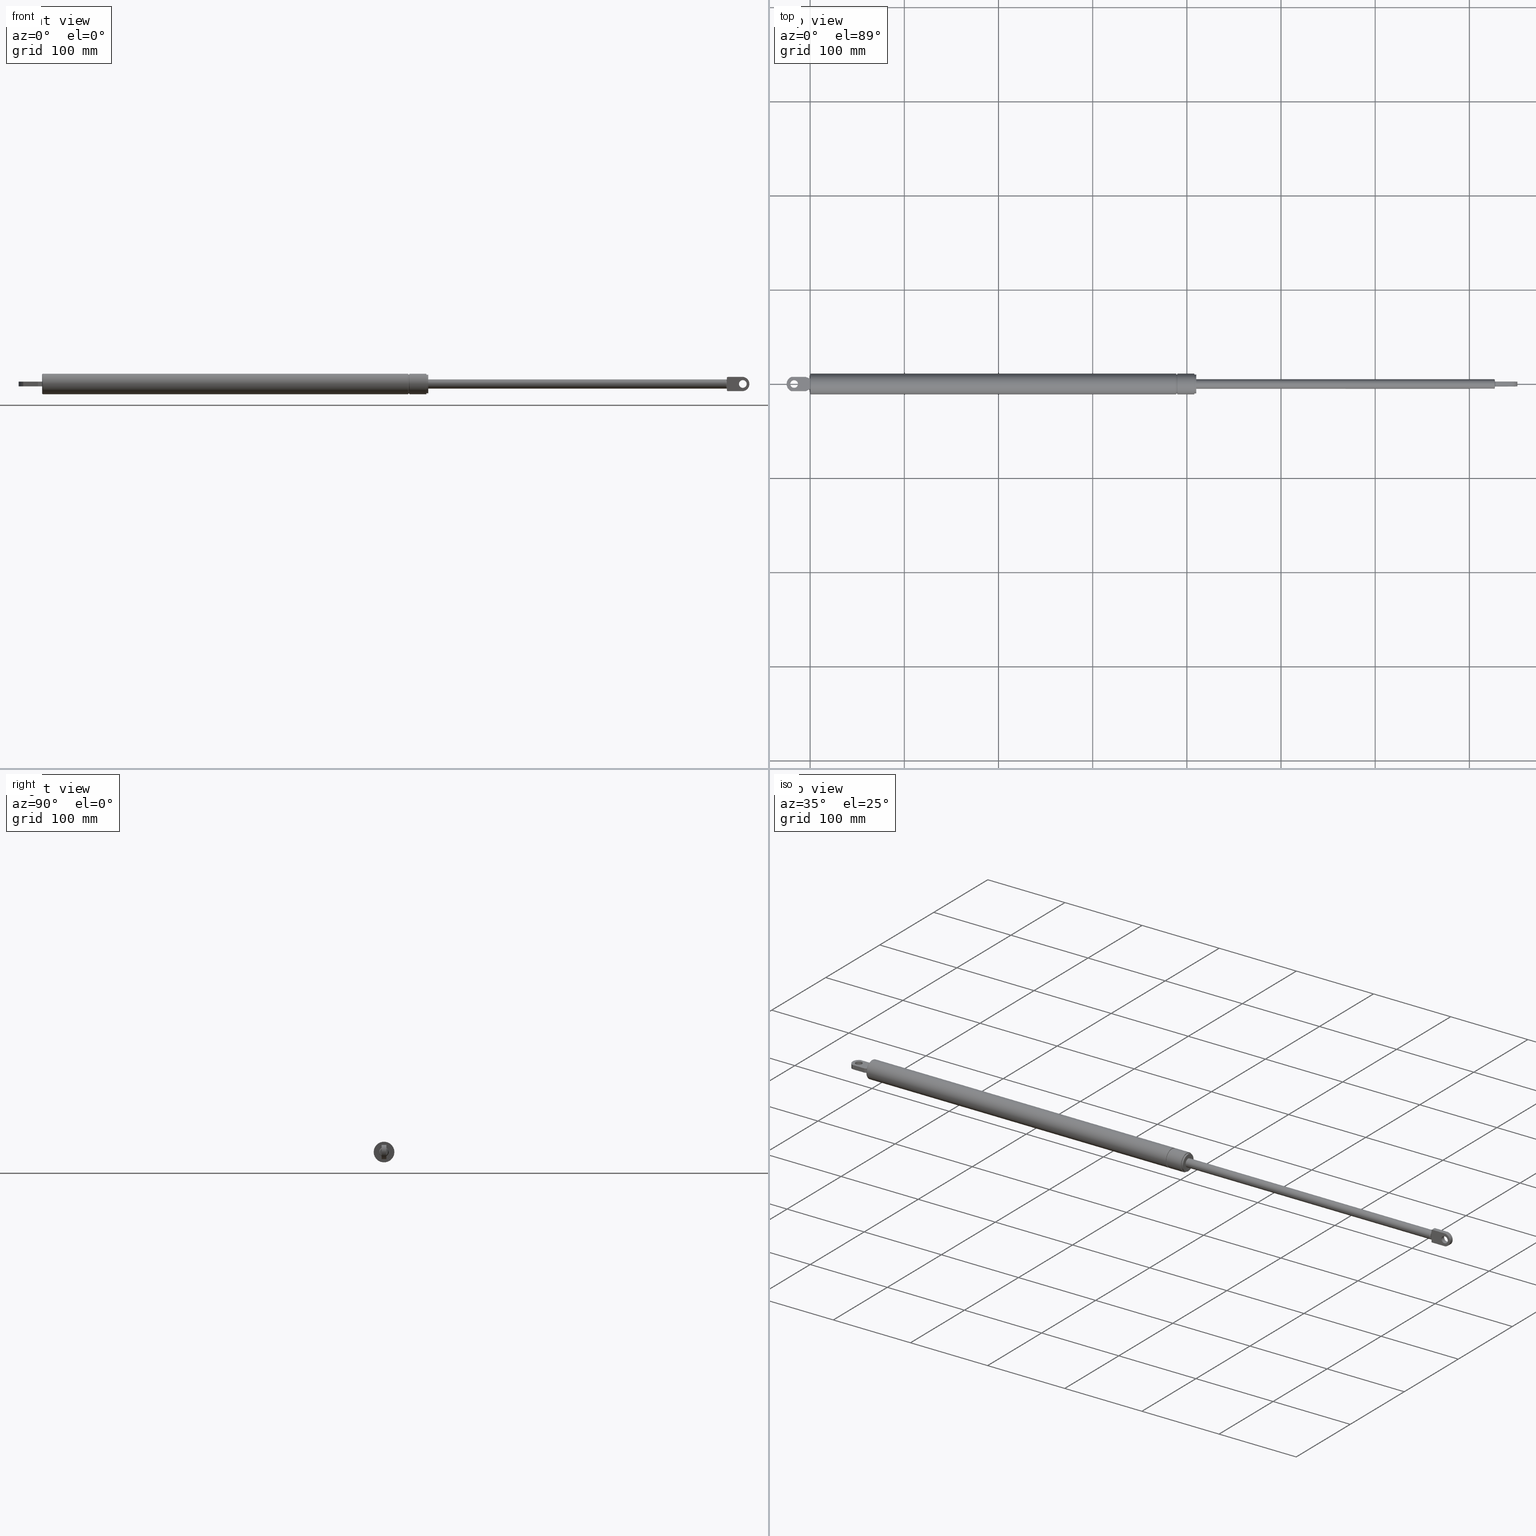
[diagram: canonical four-view strip — front | top / right | iso, engineering-drawing reading convention]
A machine part, canonical four-view strip (front | top / right | iso — engineering-drawing reading convention). The complete STEP part file that produces these views, byte-faithful:
ISO-10303-21;
HEADER;
/* Generated by software containing ST-Developer
 * from STEP Tools, Inc. (www.steptools.com) 
 */

FILE_DESCRIPTION(
/* description */ (''),
/* implementation_level */ '2;1');

FILE_NAME(
/* name */ '\\\\SYNOLOGYNAS\\web\\db2\\SBG-761\\SBG-761.stp',
/* time_stamp */ '2025-11-17T17:49:21+09:00',
/* author */ ('user'),
/* organization */ (''),
/* preprocessor_version */ 'ST-DEVELOPER v15.6',
/* originating_system */ 'Autodesk Inventor 2015',
/* authorisation */ '');

FILE_SCHEMA (('AUTOMOTIVE_DESIGN { 1 0 10303 214 3 1 1 }'));
ENDSEC;

DATA;
#10=MECHANICAL_DESIGN_GEOMETRIC_PRESENTATION_REPRESENTATION('',(#569,#568,
#570,#565,#566,#567,#539,#540,#536,#535,#538,#537,#549,#546,#551,#543,#542,
#550,#544,#545,#547,#541,#548,#552,#560,#559,#554,#558,#561,#557,#556,#553,
#562,#555,#563,#564),#1048);
#11=SHAPE_REPRESENTATION_RELATIONSHIP('SRR','None',#1057,#12);
#12=ADVANCED_BREP_SHAPE_REPRESENTATION($,(#13),#1047);
#13=MANIFOLD_SOLID_BREP('\X2\C194B9ACB4DC\X0\1',#607);
#14=PLANE('',#622);
#15=PLANE('',#623);
#16=PLANE('',#629);
#17=PLANE('',#632);
#18=PLANE('',#633);
#19=PLANE('',#636);
#20=PLANE('',#637);
#21=PLANE('',#638);
#22=PLANE('',#642);
#23=PLANE('',#644);
#24=PLANE('',#645);
#25=PLANE('',#646);
#26=PLANE('',#648);
#27=PLANE('',#649);
#28=PLANE('',#654);
#29=PLANE('',#660);
#30=PLANE('',#669);
#31=PLANE('',#672);
#32=PLANE('',#675);
#33=FACE_BOUND('',#174,.T.);
#34=FACE_BOUND('',#179,.T.);
#35=FACE_BOUND('',#183,.T.);
#36=FACE_BOUND('',#186,.T.);
#37=FACE_BOUND('',#192,.T.);
#38=FACE_BOUND('',#194,.T.);
#39=FACE_BOUND('',#198,.T.);
#40=FACE_BOUND('',#203,.T.);
#41=FACE_BOUND('',#205,.T.);
#42=FACE_BOUND('',#207,.T.);
#43=FACE_BOUND('',#209,.T.);
#44=FACE_BOUND('',#211,.T.);
#45=FACE_BOUND('',#213,.T.);
#46=FACE_BOUND('',#215,.T.);
#47=FACE_BOUND('',#217,.T.);
#48=FACE_BOUND('',#219,.T.);
#49=FACE_BOUND('',#221,.T.);
#50=FACE_BOUND('',#223,.T.);
#51=FACE_BOUND('',#225,.T.);
#52=FACE_BOUND('',#227,.T.);
#53=LINE('',#878,#89);
#54=LINE('',#880,#90);
#55=LINE('',#884,#91);
#56=LINE('',#888,#92);
#57=LINE('',#921,#93);
#58=LINE('',#924,#94);
#59=LINE('',#926,#95);
#60=LINE('',#927,#96);
#61=LINE('',#930,#97);
#62=LINE('',#934,#98);
#63=LINE('',#937,#99);
#64=LINE('',#938,#100);
#65=LINE('',#945,#101);
#66=LINE('',#946,#102);
#67=LINE('',#948,#103);
#68=LINE('',#954,#104);
#69=LINE('',#955,#105);
#70=LINE('',#957,#106);
#71=LINE('',#959,#107);
#72=LINE('',#962,#108);
#73=LINE('',#974,#109);
#74=LINE('',#976,#110);
#75=LINE('',#978,#111);
#76=LINE('',#982,#112);
#77=LINE('',#983,#113);
#78=LINE('',#986,#114);
#79=LINE('',#988,#115);
#80=LINE('',#989,#116);
#81=LINE('',#992,#117);
#82=LINE('',#993,#118);
#83=LINE('',#996,#119);
#84=LINE('',#1000,#120);
#85=LINE('',#1001,#121);
#86=LINE('',#1003,#122);
#87=LINE('',#1004,#123);
#88=LINE('',#1006,#124);
#89=VECTOR('',#686,0.999999999999943);
#90=VECTOR('',#687,0.999999999999943);
#91=VECTOR('',#690,0.999999999999943);
#92=VECTOR('',#693,0.999999999999943);
#93=VECTOR('',#706,5.);
#94=VECTOR('',#709,5.);
#95=VECTOR('',#712,2.16987298107817);
#96=VECTOR('',#713,2.16987298107802);
#97=VECTOR('',#716,16.6941859308233);
#98=VECTOR('',#719,16.6941859308233);
#99=VECTOR('',#722,2.16987298107789);
#100=VECTOR('',#723,6.2449979983982);
#101=VECTOR('',#730,5.);
#102=VECTOR('',#731,5.);
#103=VECTOR('',#734,2.16987298107774);
#104=VECTOR('',#741,16.6941859308233);
#105=VECTOR('',#742,5.);
#106=VECTOR('',#745,6.24499799839863);
#107=VECTOR('',#746,16.6941859308233);
#108=VECTOR('',#751,5.);
#109=VECTOR('',#766,11.);
#110=VECTOR('',#767,4.92442890089806);
#111=VECTOR('',#768,15.5);
#112=VECTOR('',#771,15.5);
#113=VECTOR('',#772,4.92442890089806);
#114=VECTOR('',#775,5.);
#115=VECTOR('',#776,15.5);
#116=VECTOR('',#777,5.);
#117=VECTOR('',#780,4.92442890089806);
#118=VECTOR('',#781,5.);
#119=VECTOR('',#784,11.);
#120=VECTOR('',#787,15.5);
#121=VECTOR('',#788,4.92442890089806);
#122=VECTOR('',#791,5.);
#123=VECTOR('',#792,5.);
#124=VECTOR('',#795,5.);
#125=CYLINDRICAL_SURFACE('',#612,5.00000000000001);
#126=CYLINDRICAL_SURFACE('',#619,1.);
#127=CYLINDRICAL_SURFACE('',#627,1.);
#128=CYLINDRICAL_SURFACE('',#630,4.09999999999999);
#129=CYLINDRICAL_SURFACE('',#635,7.61307660055715);
#130=CYLINDRICAL_SURFACE('',#639,4.1);
#131=CYLINDRICAL_SURFACE('',#650,8.125);
#132=CYLINDRICAL_SURFACE('',#655,11.);
#133=CYLINDRICAL_SURFACE('',#662,11.);
#134=CYLINDRICAL_SURFACE('',#667,10.1);
#135=CYLINDRICAL_SURFACE('',#673,9.9);
#136=FACE_OUTER_BOUND('',#172,.T.);
#137=FACE_OUTER_BOUND('',#173,.T.);
#138=FACE_OUTER_BOUND('',#175,.T.);
#139=FACE_OUTER_BOUND('',#176,.T.);
#140=FACE_OUTER_BOUND('',#177,.T.);
#141=FACE_OUTER_BOUND('',#178,.T.);
#142=FACE_OUTER_BOUND('',#180,.T.);
#143=FACE_OUTER_BOUND('',#181,.T.);
#144=FACE_OUTER_BOUND('',#182,.T.);
#145=FACE_OUTER_BOUND('',#184,.T.);
#146=FACE_OUTER_BOUND('',#185,.T.);
#147=FACE_OUTER_BOUND('',#187,.T.);
#148=FACE_OUTER_BOUND('',#188,.T.);
#149=FACE_OUTER_BOUND('',#189,.T.);
#150=FACE_OUTER_BOUND('',#190,.T.);
#151=FACE_OUTER_BOUND('',#191,.T.);
#152=FACE_OUTER_BOUND('',#193,.T.);
#153=FACE_OUTER_BOUND('',#195,.T.);
#154=FACE_OUTER_BOUND('',#196,.T.);
#155=FACE_OUTER_BOUND('',#197,.T.);
#156=FACE_OUTER_BOUND('',#199,.T.);
#157=FACE_OUTER_BOUND('',#200,.T.);
#158=FACE_OUTER_BOUND('',#201,.T.);
#159=FACE_OUTER_BOUND('',#202,.T.);
#160=FACE_OUTER_BOUND('',#204,.T.);
#161=FACE_OUTER_BOUND('',#206,.T.);
#162=FACE_OUTER_BOUND('',#208,.T.);
#163=FACE_OUTER_BOUND('',#210,.T.);
#164=FACE_OUTER_BOUND('',#212,.T.);
#165=FACE_OUTER_BOUND('',#214,.T.);
#166=FACE_OUTER_BOUND('',#216,.T.);
#167=FACE_OUTER_BOUND('',#218,.T.);
#168=FACE_OUTER_BOUND('',#220,.T.);
#169=FACE_OUTER_BOUND('',#222,.T.);
#170=FACE_OUTER_BOUND('',#224,.T.);
#171=FACE_OUTER_BOUND('',#226,.T.);
#172=EDGE_LOOP('',(#387,#388,#389,#390));
#173=EDGE_LOOP('',(#391,#392,#393,#394,#395,#396,#397,#398));
#174=EDGE_LOOP('',(#399));
#175=EDGE_LOOP('',(#400,#401,#402,#403));
#176=EDGE_LOOP('',(#404,#405,#406,#407));
#177=EDGE_LOOP('',(#408,#409,#410,#411));
#178=EDGE_LOOP('',(#412,#413,#414,#415,#416,#417,#418,#419,#420,#421,#422,
#423));
#179=EDGE_LOOP('',(#424));
#180=EDGE_LOOP('',(#425,#426,#427,#428));
#181=EDGE_LOOP('',(#429,#430,#431,#432));
#182=EDGE_LOOP('',(#433));
#183=EDGE_LOOP('',(#434));
#184=EDGE_LOOP('',(#435,#436,#437,#438));
#185=EDGE_LOOP('',(#439,#440,#441,#442,#443,#444,#445,#446,#447,#448,#449,
#450));
#186=EDGE_LOOP('',(#451));
#187=EDGE_LOOP('',(#452,#453,#454,#455));
#188=EDGE_LOOP('',(#456,#457,#458,#459));
#189=EDGE_LOOP('',(#460,#461));
#190=EDGE_LOOP('',(#462,#463));
#191=EDGE_LOOP('',(#464));
#192=EDGE_LOOP('',(#465));
#193=EDGE_LOOP('',(#466,#467,#468,#469,#470,#471));
#194=EDGE_LOOP('',(#472));
#195=EDGE_LOOP('',(#473,#474,#475,#476));
#196=EDGE_LOOP('',(#477,#478,#479,#480));
#197=EDGE_LOOP('',(#481,#482,#483,#484,#485,#486));
#198=EDGE_LOOP('',(#487));
#199=EDGE_LOOP('',(#488,#489,#490,#491));
#200=EDGE_LOOP('',(#492,#493,#494,#495));
#201=EDGE_LOOP('',(#496,#497,#498,#499));
#202=EDGE_LOOP('',(#500));
#203=EDGE_LOOP('',(#501));
#204=EDGE_LOOP('',(#502));
#205=EDGE_LOOP('',(#503,#504,#505,#506));
#206=EDGE_LOOP('',(#507));
#207=EDGE_LOOP('',(#508));
#208=EDGE_LOOP('',(#509));
#209=EDGE_LOOP('',(#510));
#210=EDGE_LOOP('',(#511));
#211=EDGE_LOOP('',(#512));
#212=EDGE_LOOP('',(#513));
#213=EDGE_LOOP('',(#514));
#214=EDGE_LOOP('',(#515));
#215=EDGE_LOOP('',(#516));
#216=EDGE_LOOP('',(#517));
#217=EDGE_LOOP('',(#518));
#218=EDGE_LOOP('',(#519));
#219=EDGE_LOOP('',(#520));
#220=EDGE_LOOP('',(#521));
#221=EDGE_LOOP('',(#522));
#222=EDGE_LOOP('',(#523));
#223=EDGE_LOOP('',(#524));
#224=EDGE_LOOP('',(#525));
#225=EDGE_LOOP('',(#526));
#226=EDGE_LOOP('',(#527));
#227=EDGE_LOOP('',(#528));
#228=CIRCLE('',#610,4.00000000000001);
#229=CIRCLE('',#611,5.00000000000001);
#230=CIRCLE('',#613,4.99999999999999);
#231=CIRCLE('',#614,5.00000000000001);
#232=CIRCLE('',#615,4.99999999999999);
#233=CIRCLE('',#616,5.00000000000001);
#234=CIRCLE('',#618,4.00000000000001);
#235=CIRCLE('',#620,1.);
#236=CIRCLE('',#621,1.);
#237=CIRCLE('',#624,7.61307660055715);
#238=CIRCLE('',#625,1.);
#239=CIRCLE('',#626,4.09999999999999);
#240=CIRCLE('',#628,1.);
#241=CIRCLE('',#631,4.09999999999999);
#242=CIRCLE('',#634,7.61307660055715);
#243=CIRCLE('',#640,4.1);
#244=CIRCLE('',#641,4.1);
#245=CIRCLE('',#643,8.125);
#246=CIRCLE('',#647,8.125);
#247=CIRCLE('',#652,10.);
#248=CIRCLE('',#653,11.);
#249=CIRCLE('',#656,11.);
#250=CIRCLE('',#658,11.);
#251=CIRCLE('',#659,10.8);
#252=CIRCLE('',#661,9.9);
#253=CIRCLE('',#663,11.);
#254=CIRCLE('',#665,10.1);
#255=CIRCLE('',#666,10.6);
#256=CIRCLE('',#668,10.1);
#257=CIRCLE('',#671,10.6);
#258=CIRCLE('',#674,9.9);
#259=B_SPLINE_CURVE_WITH_KNOTS('',3,(#852,#853,#854,#855,#856,#857,#858,
#859,#860,#861),.UNSPECIFIED.,.F.,.F.,(4,2,2,2,4),(0.527574942057006,0.574789015693681,
0.615444328148544,0.655268100683458,0.691990051558078),.UNSPECIFIED.);
#260=B_SPLINE_CURVE_WITH_KNOTS('',3,(#865,#866,#867,#868,#869,#870,#871,
#872,#873,#874),.UNSPECIFIED.,.F.,.F.,(4,2,2,2,4),(0.,0.0367219508746202,
0.0765457234095343,0.117201035864398,0.164415109501073),.UNSPECIFIED.);
#261=B_SPLINE_CURVE_WITH_KNOTS('',3,(#894,#895,#896,#897,#898,#899,#900,
#901,#902,#903),.UNSPECIFIED.,.F.,.F.,(4,2,2,2,4),(0.527581990375259,0.577008371258371,
0.619288389863028,0.65699344234177,0.691991559418237),.UNSPECIFIED.);
#262=B_SPLINE_CURVE_WITH_KNOTS('',3,(#906,#907,#908,#909,#910,#911,#912,
#913,#914,#915),.UNSPECIFIED.,.F.,.F.,(4,2,2,2,4),(0.,0.0349981170764672,
0.0727031695552091,0.114983188159866,0.164409569042978),.UNSPECIFIED.);
#263=VERTEX_POINT('',#850);
#264=VERTEX_POINT('',#851);
#265=VERTEX_POINT('',#862);
#266=VERTEX_POINT('',#864);
#267=VERTEX_POINT('',#877);
#268=VERTEX_POINT('',#879);
#269=VERTEX_POINT('',#881);
#270=VERTEX_POINT('',#883);
#271=VERTEX_POINT('',#885);
#272=VERTEX_POINT('',#887);
#273=VERTEX_POINT('',#890);
#274=VERTEX_POINT('',#893);
#275=VERTEX_POINT('',#904);
#276=VERTEX_POINT('',#917);
#277=VERTEX_POINT('',#918);
#278=VERTEX_POINT('',#920);
#279=VERTEX_POINT('',#922);
#280=VERTEX_POINT('',#929);
#281=VERTEX_POINT('',#931);
#282=VERTEX_POINT('',#933);
#283=VERTEX_POINT('',#935);
#284=VERTEX_POINT('',#939);
#285=VERTEX_POINT('',#942);
#286=VERTEX_POINT('',#943);
#287=VERTEX_POINT('',#950);
#288=VERTEX_POINT('',#953);
#289=VERTEX_POINT('',#958);
#290=VERTEX_POINT('',#967);
#291=VERTEX_POINT('',#969);
#292=VERTEX_POINT('',#972);
#293=VERTEX_POINT('',#973);
#294=VERTEX_POINT('',#975);
#295=VERTEX_POINT('',#977);
#296=VERTEX_POINT('',#979);
#297=VERTEX_POINT('',#981);
#298=VERTEX_POINT('',#985);
#299=VERTEX_POINT('',#987);
#300=VERTEX_POINT('',#991);
#301=VERTEX_POINT('',#995);
#302=VERTEX_POINT('',#997);
#303=VERTEX_POINT('',#999);
#304=VERTEX_POINT('',#1009);
#305=VERTEX_POINT('',#1011);
#306=VERTEX_POINT('',#1015);
#307=VERTEX_POINT('',#1018);
#308=VERTEX_POINT('',#1020);
#309=VERTEX_POINT('',#1023);
#310=VERTEX_POINT('',#1026);
#311=VERTEX_POINT('',#1029);
#312=VERTEX_POINT('',#1031);
#313=VERTEX_POINT('',#1034);
#314=VERTEX_POINT('',#1038);
#315=VERTEX_POINT('',#1042);
#316=EDGE_CURVE('',#263,#264,#259,.F.);
#317=EDGE_CURVE('',#264,#265,#228,.T.);
#318=EDGE_CURVE('',#266,#265,#260,.T.);
#319=EDGE_CURVE('',#266,#263,#229,.T.);
#320=EDGE_CURVE('',#263,#267,#53,.T.);
#321=EDGE_CURVE('',#268,#266,#54,.T.);
#322=EDGE_CURVE('',#269,#268,#230,.T.);
#323=EDGE_CURVE('',#270,#269,#55,.T.);
#324=EDGE_CURVE('',#271,#270,#231,.T.);
#325=EDGE_CURVE('',#272,#271,#56,.T.);
#326=EDGE_CURVE('',#267,#272,#232,.T.);
#327=EDGE_CURVE('',#273,#273,#233,.T.);
#328=EDGE_CURVE('',#270,#274,#261,.F.);
#329=EDGE_CURVE('',#274,#275,#234,.T.);
#330=EDGE_CURVE('',#271,#275,#262,.T.);
#331=EDGE_CURVE('',#276,#277,#235,.T.);
#332=EDGE_CURVE('',#277,#278,#57,.T.);
#333=EDGE_CURVE('',#278,#279,#236,.T.);
#334=EDGE_CURVE('',#279,#276,#58,.T.);
#335=EDGE_CURVE('',#269,#279,#59,.T.);
#336=EDGE_CURVE('',#276,#268,#60,.T.);
#337=EDGE_CURVE('',#278,#280,#61,.T.);
#338=EDGE_CURVE('',#280,#281,#237,.T.);
#339=EDGE_CURVE('',#281,#282,#62,.T.);
#340=EDGE_CURVE('',#283,#282,#238,.T.);
#341=EDGE_CURVE('',#283,#272,#63,.T.);
#342=EDGE_CURVE('',#274,#275,#64,.T.);
#343=EDGE_CURVE('',#284,#284,#239,.T.);
#344=EDGE_CURVE('',#285,#286,#240,.T.);
#345=EDGE_CURVE('',#286,#283,#65,.T.);
#346=EDGE_CURVE('',#282,#285,#66,.T.);
#347=EDGE_CURVE('',#267,#286,#67,.T.);
#348=EDGE_CURVE('',#287,#287,#241,.T.);
#349=EDGE_CURVE('',#288,#277,#68,.T.);
#350=EDGE_CURVE('',#280,#288,#69,.T.);
#351=EDGE_CURVE('',#264,#265,#70,.T.);
#352=EDGE_CURVE('',#285,#289,#71,.T.);
#353=EDGE_CURVE('',#289,#288,#242,.T.);
#354=EDGE_CURVE('',#281,#289,#72,.T.);
#355=EDGE_CURVE('',#290,#290,#243,.T.);
#356=EDGE_CURVE('',#291,#291,#244,.T.);
#357=EDGE_CURVE('',#292,#293,#73,.T.);
#358=EDGE_CURVE('',#292,#294,#74,.T.);
#359=EDGE_CURVE('',#294,#295,#75,.T.);
#360=EDGE_CURVE('',#295,#296,#245,.T.);
#361=EDGE_CURVE('',#296,#297,#76,.T.);
#362=EDGE_CURVE('',#297,#293,#77,.T.);
#363=EDGE_CURVE('',#296,#298,#78,.T.);
#364=EDGE_CURVE('',#299,#298,#79,.T.);
#365=EDGE_CURVE('',#297,#299,#80,.T.);
#366=EDGE_CURVE('',#300,#299,#81,.T.);
#367=EDGE_CURVE('',#293,#300,#82,.T.);
#368=EDGE_CURVE('',#300,#301,#83,.T.);
#369=EDGE_CURVE('',#298,#302,#246,.T.);
#370=EDGE_CURVE('',#302,#303,#84,.T.);
#371=EDGE_CURVE('',#303,#301,#85,.T.);
#372=EDGE_CURVE('',#301,#292,#86,.T.);
#373=EDGE_CURVE('',#294,#303,#87,.T.);
#374=EDGE_CURVE('',#295,#302,#88,.T.);
#375=EDGE_CURVE('',#304,#304,#247,.T.);
#376=EDGE_CURVE('',#305,#305,#248,.T.);
#377=EDGE_CURVE('',#306,#306,#249,.T.);
#378=EDGE_CURVE('',#307,#307,#250,.T.);
#379=EDGE_CURVE('',#308,#308,#251,.T.);
#380=EDGE_CURVE('',#309,#309,#252,.T.);
#381=EDGE_CURVE('',#310,#310,#253,.T.);
#382=EDGE_CURVE('',#311,#311,#254,.T.);
#383=EDGE_CURVE('',#312,#312,#255,.T.);
#384=EDGE_CURVE('',#313,#313,#256,.T.);
#385=EDGE_CURVE('',#314,#314,#257,.T.);
#386=EDGE_CURVE('',#315,#315,#258,.T.);
#387=ORIENTED_EDGE('',*,*,#316,.T.);
#388=ORIENTED_EDGE('',*,*,#317,.T.);
#389=ORIENTED_EDGE('',*,*,#318,.F.);
#390=ORIENTED_EDGE('',*,*,#319,.T.);
#391=ORIENTED_EDGE('',*,*,#320,.F.);
#392=ORIENTED_EDGE('',*,*,#319,.F.);
#393=ORIENTED_EDGE('',*,*,#321,.F.);
#394=ORIENTED_EDGE('',*,*,#322,.F.);
#395=ORIENTED_EDGE('',*,*,#323,.F.);
#396=ORIENTED_EDGE('',*,*,#324,.F.);
#397=ORIENTED_EDGE('',*,*,#325,.F.);
#398=ORIENTED_EDGE('',*,*,#326,.F.);
#399=ORIENTED_EDGE('',*,*,#327,.F.);
#400=ORIENTED_EDGE('',*,*,#328,.T.);
#401=ORIENTED_EDGE('',*,*,#329,.T.);
#402=ORIENTED_EDGE('',*,*,#330,.F.);
#403=ORIENTED_EDGE('',*,*,#324,.T.);
#404=ORIENTED_EDGE('',*,*,#331,.T.);
#405=ORIENTED_EDGE('',*,*,#332,.T.);
#406=ORIENTED_EDGE('',*,*,#333,.T.);
#407=ORIENTED_EDGE('',*,*,#334,.T.);
#408=ORIENTED_EDGE('',*,*,#334,.F.);
#409=ORIENTED_EDGE('',*,*,#335,.F.);
#410=ORIENTED_EDGE('',*,*,#322,.T.);
#411=ORIENTED_EDGE('',*,*,#336,.F.);
#412=ORIENTED_EDGE('',*,*,#333,.F.);
#413=ORIENTED_EDGE('',*,*,#337,.T.);
#414=ORIENTED_EDGE('',*,*,#338,.T.);
#415=ORIENTED_EDGE('',*,*,#339,.T.);
#416=ORIENTED_EDGE('',*,*,#340,.F.);
#417=ORIENTED_EDGE('',*,*,#341,.T.);
#418=ORIENTED_EDGE('',*,*,#325,.T.);
#419=ORIENTED_EDGE('',*,*,#330,.T.);
#420=ORIENTED_EDGE('',*,*,#342,.F.);
#421=ORIENTED_EDGE('',*,*,#328,.F.);
#422=ORIENTED_EDGE('',*,*,#323,.T.);
#423=ORIENTED_EDGE('',*,*,#335,.T.);
#424=ORIENTED_EDGE('',*,*,#343,.T.);
#425=ORIENTED_EDGE('',*,*,#344,.T.);
#426=ORIENTED_EDGE('',*,*,#345,.T.);
#427=ORIENTED_EDGE('',*,*,#340,.T.);
#428=ORIENTED_EDGE('',*,*,#346,.T.);
#429=ORIENTED_EDGE('',*,*,#345,.F.);
#430=ORIENTED_EDGE('',*,*,#347,.F.);
#431=ORIENTED_EDGE('',*,*,#326,.T.);
#432=ORIENTED_EDGE('',*,*,#341,.F.);
#433=ORIENTED_EDGE('',*,*,#343,.F.);
#434=ORIENTED_EDGE('',*,*,#348,.F.);
#435=ORIENTED_EDGE('',*,*,#332,.F.);
#436=ORIENTED_EDGE('',*,*,#349,.F.);
#437=ORIENTED_EDGE('',*,*,#350,.F.);
#438=ORIENTED_EDGE('',*,*,#337,.F.);
#439=ORIENTED_EDGE('',*,*,#331,.F.);
#440=ORIENTED_EDGE('',*,*,#336,.T.);
#441=ORIENTED_EDGE('',*,*,#321,.T.);
#442=ORIENTED_EDGE('',*,*,#318,.T.);
#443=ORIENTED_EDGE('',*,*,#351,.F.);
#444=ORIENTED_EDGE('',*,*,#316,.F.);
#445=ORIENTED_EDGE('',*,*,#320,.T.);
#446=ORIENTED_EDGE('',*,*,#347,.T.);
#447=ORIENTED_EDGE('',*,*,#344,.F.);
#448=ORIENTED_EDGE('',*,*,#352,.T.);
#449=ORIENTED_EDGE('',*,*,#353,.T.);
#450=ORIENTED_EDGE('',*,*,#349,.T.);
#451=ORIENTED_EDGE('',*,*,#348,.T.);
#452=ORIENTED_EDGE('',*,*,#353,.F.);
#453=ORIENTED_EDGE('',*,*,#354,.F.);
#454=ORIENTED_EDGE('',*,*,#338,.F.);
#455=ORIENTED_EDGE('',*,*,#350,.T.);
#456=ORIENTED_EDGE('',*,*,#346,.F.);
#457=ORIENTED_EDGE('',*,*,#339,.F.);
#458=ORIENTED_EDGE('',*,*,#354,.T.);
#459=ORIENTED_EDGE('',*,*,#352,.F.);
#460=ORIENTED_EDGE('',*,*,#317,.F.);
#461=ORIENTED_EDGE('',*,*,#351,.T.);
#462=ORIENTED_EDGE('',*,*,#329,.F.);
#463=ORIENTED_EDGE('',*,*,#342,.T.);
#464=ORIENTED_EDGE('',*,*,#355,.F.);
#465=ORIENTED_EDGE('',*,*,#356,.F.);
#466=ORIENTED_EDGE('',*,*,#357,.F.);
#467=ORIENTED_EDGE('',*,*,#358,.T.);
#468=ORIENTED_EDGE('',*,*,#359,.T.);
#469=ORIENTED_EDGE('',*,*,#360,.T.);
#470=ORIENTED_EDGE('',*,*,#361,.T.);
#471=ORIENTED_EDGE('',*,*,#362,.T.);
#472=ORIENTED_EDGE('',*,*,#355,.T.);
#473=ORIENTED_EDGE('',*,*,#363,.T.);
#474=ORIENTED_EDGE('',*,*,#364,.F.);
#475=ORIENTED_EDGE('',*,*,#365,.F.);
#476=ORIENTED_EDGE('',*,*,#361,.F.);
#477=ORIENTED_EDGE('',*,*,#365,.T.);
#478=ORIENTED_EDGE('',*,*,#366,.F.);
#479=ORIENTED_EDGE('',*,*,#367,.F.);
#480=ORIENTED_EDGE('',*,*,#362,.F.);
#481=ORIENTED_EDGE('',*,*,#368,.F.);
#482=ORIENTED_EDGE('',*,*,#366,.T.);
#483=ORIENTED_EDGE('',*,*,#364,.T.);
#484=ORIENTED_EDGE('',*,*,#369,.T.);
#485=ORIENTED_EDGE('',*,*,#370,.T.);
#486=ORIENTED_EDGE('',*,*,#371,.T.);
#487=ORIENTED_EDGE('',*,*,#356,.T.);
#488=ORIENTED_EDGE('',*,*,#372,.F.);
#489=ORIENTED_EDGE('',*,*,#371,.F.);
#490=ORIENTED_EDGE('',*,*,#373,.F.);
#491=ORIENTED_EDGE('',*,*,#358,.F.);
#492=ORIENTED_EDGE('',*,*,#373,.T.);
#493=ORIENTED_EDGE('',*,*,#370,.F.);
#494=ORIENTED_EDGE('',*,*,#374,.F.);
#495=ORIENTED_EDGE('',*,*,#359,.F.);
#496=ORIENTED_EDGE('',*,*,#374,.T.);
#497=ORIENTED_EDGE('',*,*,#369,.F.);
#498=ORIENTED_EDGE('',*,*,#363,.F.);
#499=ORIENTED_EDGE('',*,*,#360,.F.);
#500=ORIENTED_EDGE('',*,*,#375,.T.);
#501=ORIENTED_EDGE('',*,*,#376,.T.);
#502=ORIENTED_EDGE('',*,*,#375,.F.);
#503=ORIENTED_EDGE('',*,*,#357,.T.);
#504=ORIENTED_EDGE('',*,*,#367,.T.);
#505=ORIENTED_EDGE('',*,*,#368,.T.);
#506=ORIENTED_EDGE('',*,*,#372,.T.);
#507=ORIENTED_EDGE('',*,*,#377,.F.);
#508=ORIENTED_EDGE('',*,*,#376,.F.);
#509=ORIENTED_EDGE('',*,*,#378,.T.);
#510=ORIENTED_EDGE('',*,*,#379,.T.);
#511=ORIENTED_EDGE('',*,*,#379,.F.);
#512=ORIENTED_EDGE('',*,*,#380,.F.);
#513=ORIENTED_EDGE('',*,*,#381,.T.);
#514=ORIENTED_EDGE('',*,*,#378,.F.);
#515=ORIENTED_EDGE('',*,*,#382,.T.);
#516=ORIENTED_EDGE('',*,*,#383,.T.);
#517=ORIENTED_EDGE('',*,*,#384,.F.);
#518=ORIENTED_EDGE('',*,*,#382,.F.);
#519=ORIENTED_EDGE('',*,*,#381,.F.);
#520=ORIENTED_EDGE('',*,*,#383,.F.);
#521=ORIENTED_EDGE('',*,*,#385,.T.);
#522=ORIENTED_EDGE('',*,*,#384,.T.);
#523=ORIENTED_EDGE('',*,*,#377,.T.);
#524=ORIENTED_EDGE('',*,*,#385,.F.);
#525=ORIENTED_EDGE('',*,*,#380,.T.);
#526=ORIENTED_EDGE('',*,*,#386,.F.);
#527=ORIENTED_EDGE('',*,*,#386,.T.);
#528=ORIENTED_EDGE('',*,*,#327,.T.);
#529=TOROIDAL_SURFACE('',#609,4.00000000000001,1.);
#530=TOROIDAL_SURFACE('',#617,4.00000000000001,1.);
#531=TOROIDAL_SURFACE('',#651,10.,1.);
#532=TOROIDAL_SURFACE('',#657,10.8,0.2);
#533=TOROIDAL_SURFACE('',#664,10.6,0.5);
#534=TOROIDAL_SURFACE('',#670,10.6,0.5);
#535=STYLED_ITEM('',(#1067),#571);
#536=STYLED_ITEM('',(#1068),#572);
#537=STYLED_ITEM('',(#1067),#573);
#538=STYLED_ITEM('',(#1067),#574);
#539=STYLED_ITEM('',(#1067),#575);
#540=STYLED_ITEM('',(#1067),#576);
#541=STYLED_ITEM('',(#1067),#577);
#542=STYLED_ITEM('',(#1067),#578);
#543=STYLED_ITEM('',(#1067),#579);
#544=STYLED_ITEM('',(#1067),#580);
#545=STYLED_ITEM('',(#1067),#581);
#546=STYLED_ITEM('',(#1067),#582);
#547=STYLED_ITEM('',(#1067),#583);
#548=STYLED_ITEM('',(#1067),#584);
#549=STYLED_ITEM('',(#1067),#585);
#550=STYLED_ITEM('',(#1067),#586);
#551=STYLED_ITEM('',(#1067),#587);
#552=STYLED_ITEM('',(#1067),#588);
#553=STYLED_ITEM('',(#1067),#589);
#554=STYLED_ITEM('',(#1067),#590);
#555=STYLED_ITEM('',(#1067),#591);
#556=STYLED_ITEM('',(#1067),#592);
#557=STYLED_ITEM('',(#1067),#593);
#558=STYLED_ITEM('',(#1067),#594);
#559=STYLED_ITEM('',(#1067),#595);
#560=STYLED_ITEM('',(#1067),#596);
#561=STYLED_ITEM('',(#1067),#597);
#562=STYLED_ITEM('',(#1067),#598);
#563=STYLED_ITEM('',(#1067),#599);
#564=STYLED_ITEM('',(#1067),#600);
#565=STYLED_ITEM('',(#1067),#601);
#566=STYLED_ITEM('',(#1067),#603);
#567=STYLED_ITEM('',(#1067),#604);
#568=STYLED_ITEM('',(#1067),#605);
#569=STYLED_ITEM('',(#1067),#606);
#570=STYLED_ITEM('',(#1066),#13);
#571=ADVANCED_FACE('',(#136),#529,.T.);
#572=ADVANCED_FACE('',(#137,#33),#125,.T.);
#573=ADVANCED_FACE('',(#138),#530,.T.);
#574=ADVANCED_FACE('',(#139),#126,.T.);
#575=ADVANCED_FACE('',(#140),#14,.T.);
#576=ADVANCED_FACE('',(#141,#34),#15,.T.);
#577=ADVANCED_FACE('',(#142),#127,.T.);
#578=ADVANCED_FACE('',(#143),#16,.T.);
#579=ADVANCED_FACE('',(#144,#35),#128,.F.);
#580=ADVANCED_FACE('',(#145),#17,.T.);
#581=ADVANCED_FACE('',(#146,#36),#18,.F.);
#582=ADVANCED_FACE('',(#147),#129,.T.);
#583=ADVANCED_FACE('',(#148),#19,.T.);
#584=ADVANCED_FACE('',(#149),#20,.F.);
#585=ADVANCED_FACE('',(#150),#21,.F.);
#586=ADVANCED_FACE('',(#151,#37),#130,.F.);
#587=ADVANCED_FACE('',(#152,#38),#22,.F.);
#588=ADVANCED_FACE('',(#153),#23,.T.);
#589=ADVANCED_FACE('',(#154),#24,.T.);
#590=ADVANCED_FACE('',(#155,#39),#25,.T.);
#591=ADVANCED_FACE('',(#156),#26,.T.);
#592=ADVANCED_FACE('',(#157),#27,.T.);
#593=ADVANCED_FACE('',(#158),#131,.T.);
#594=ADVANCED_FACE('',(#159,#40),#531,.T.);
#595=ADVANCED_FACE('',(#160,#41),#28,.T.);
#596=ADVANCED_FACE('',(#161,#42),#132,.T.);
#597=ADVANCED_FACE('',(#162,#43),#532,.T.);
#598=ADVANCED_FACE('',(#163,#44),#29,.T.);
#599=ADVANCED_FACE('',(#164,#45),#133,.T.);
#600=ADVANCED_FACE('',(#165,#46),#533,.F.);
#601=ADVANCED_FACE('',(#166,#47),#134,.T.);
#602=ADVANCED_FACE('',(#167,#48),#30,.T.);
#603=ADVANCED_FACE('',(#168,#49),#534,.F.);
#604=ADVANCED_FACE('',(#169,#50),#31,.T.);
#605=ADVANCED_FACE('',(#170,#51),#135,.T.);
#606=ADVANCED_FACE('',(#171,#52),#32,.T.);
#607=CLOSED_SHELL('',(#571,#572,#573,#574,#575,#576,#577,#578,#579,#580,
#581,#582,#583,#584,#585,#586,#587,#588,#589,#590,#591,#592,#593,#594,#595,
#596,#597,#598,#599,#600,#601,#602,#603,#604,#605,#606));
#608=AXIS2_PLACEMENT_3D('placement',#848,#676,#677);
#609=AXIS2_PLACEMENT_3D('',#849,#678,#679);
#610=AXIS2_PLACEMENT_3D('',#863,#680,#681);
#611=AXIS2_PLACEMENT_3D('',#875,#682,#683);
#612=AXIS2_PLACEMENT_3D('',#876,#684,#685);
#613=AXIS2_PLACEMENT_3D('',#882,#688,#689);
#614=AXIS2_PLACEMENT_3D('',#886,#691,#692);
#615=AXIS2_PLACEMENT_3D('',#889,#694,#695);
#616=AXIS2_PLACEMENT_3D('',#891,#696,#697);
#617=AXIS2_PLACEMENT_3D('',#892,#698,#699);
#618=AXIS2_PLACEMENT_3D('',#905,#700,#701);
#619=AXIS2_PLACEMENT_3D('',#916,#702,#703);
#620=AXIS2_PLACEMENT_3D('',#919,#704,#705);
#621=AXIS2_PLACEMENT_3D('',#923,#707,#708);
#622=AXIS2_PLACEMENT_3D('',#925,#710,#711);
#623=AXIS2_PLACEMENT_3D('',#928,#714,#715);
#624=AXIS2_PLACEMENT_3D('',#932,#717,#718);
#625=AXIS2_PLACEMENT_3D('',#936,#720,#721);
#626=AXIS2_PLACEMENT_3D('',#940,#724,#725);
#627=AXIS2_PLACEMENT_3D('',#941,#726,#727);
#628=AXIS2_PLACEMENT_3D('',#944,#728,#729);
#629=AXIS2_PLACEMENT_3D('',#947,#732,#733);
#630=AXIS2_PLACEMENT_3D('',#949,#735,#736);
#631=AXIS2_PLACEMENT_3D('',#951,#737,#738);
#632=AXIS2_PLACEMENT_3D('',#952,#739,#740);
#633=AXIS2_PLACEMENT_3D('',#956,#743,#744);
#634=AXIS2_PLACEMENT_3D('',#960,#747,#748);
#635=AXIS2_PLACEMENT_3D('',#961,#749,#750);
#636=AXIS2_PLACEMENT_3D('',#963,#752,#753);
#637=AXIS2_PLACEMENT_3D('',#964,#754,#755);
#638=AXIS2_PLACEMENT_3D('',#965,#756,#757);
#639=AXIS2_PLACEMENT_3D('',#966,#758,#759);
#640=AXIS2_PLACEMENT_3D('',#968,#760,#761);
#641=AXIS2_PLACEMENT_3D('',#970,#762,#763);
#642=AXIS2_PLACEMENT_3D('',#971,#764,#765);
#643=AXIS2_PLACEMENT_3D('',#980,#769,#770);
#644=AXIS2_PLACEMENT_3D('',#984,#773,#774);
#645=AXIS2_PLACEMENT_3D('',#990,#778,#779);
#646=AXIS2_PLACEMENT_3D('',#994,#782,#783);
#647=AXIS2_PLACEMENT_3D('',#998,#785,#786);
#648=AXIS2_PLACEMENT_3D('',#1002,#789,#790);
#649=AXIS2_PLACEMENT_3D('',#1005,#793,#794);
#650=AXIS2_PLACEMENT_3D('',#1007,#796,#797);
#651=AXIS2_PLACEMENT_3D('',#1008,#798,#799);
#652=AXIS2_PLACEMENT_3D('',#1010,#800,#801);
#653=AXIS2_PLACEMENT_3D('',#1012,#802,#803);
#654=AXIS2_PLACEMENT_3D('',#1013,#804,#805);
#655=AXIS2_PLACEMENT_3D('',#1014,#806,#807);
#656=AXIS2_PLACEMENT_3D('',#1016,#808,#809);
#657=AXIS2_PLACEMENT_3D('',#1017,#810,#811);
#658=AXIS2_PLACEMENT_3D('',#1019,#812,#813);
#659=AXIS2_PLACEMENT_3D('',#1021,#814,#815);
#660=AXIS2_PLACEMENT_3D('',#1022,#816,#817);
#661=AXIS2_PLACEMENT_3D('',#1024,#818,#819);
#662=AXIS2_PLACEMENT_3D('',#1025,#820,#821);
#663=AXIS2_PLACEMENT_3D('',#1027,#822,#823);
#664=AXIS2_PLACEMENT_3D('',#1028,#824,#825);
#665=AXIS2_PLACEMENT_3D('',#1030,#826,#827);
#666=AXIS2_PLACEMENT_3D('',#1032,#828,#829);
#667=AXIS2_PLACEMENT_3D('',#1033,#830,#831);
#668=AXIS2_PLACEMENT_3D('',#1035,#832,#833);
#669=AXIS2_PLACEMENT_3D('',#1036,#834,#835);
#670=AXIS2_PLACEMENT_3D('',#1037,#836,#837);
#671=AXIS2_PLACEMENT_3D('',#1039,#838,#839);
#672=AXIS2_PLACEMENT_3D('',#1040,#840,#841);
#673=AXIS2_PLACEMENT_3D('',#1041,#842,#843);
#674=AXIS2_PLACEMENT_3D('',#1043,#844,#845);
#675=AXIS2_PLACEMENT_3D('',#1044,#846,#847);
#676=DIRECTION('axis',(0.,0.,1.));
#677=DIRECTION('refdir',(1.,0.,0.));
#678=DIRECTION('center_axis',(1.,1.83697019872103E-16,0.));
#679=DIRECTION('ref_axis',(0.,0.,-1.));
#680=DIRECTION('center_axis',(-1.,-1.83697019872103E-16,0.));
#681=DIRECTION('ref_axis',(-1.83697019872103E-16,1.,-1.60812264967664E-16));
#682=DIRECTION('center_axis',(1.,1.83697019872103E-16,0.));
#683=DIRECTION('ref_axis',(-1.94289029309403E-16,1.,-1.60812264967664E-16));
#684=DIRECTION('center_axis',(1.,1.83697019872103E-16,0.));
#685=DIRECTION('ref_axis',(0.,1.,0.));
#686=DIRECTION('',(1.,1.83697019872103E-16,0.));
#687=DIRECTION('',(-1.,-1.83697019872103E-16,0.));
#688=DIRECTION('center_axis',(1.,1.83697019872103E-16,0.));
#689=DIRECTION('ref_axis',(0.,0.,1.));
#690=DIRECTION('',(1.,1.83697019872103E-16,0.));
#691=DIRECTION('center_axis',(1.,1.83697019872103E-16,0.));
#692=DIRECTION('ref_axis',(1.94289029309403E-16,-1.,-1.60812264967664E-16));
#693=DIRECTION('',(-1.,-1.83697019872103E-16,0.));
#694=DIRECTION('center_axis',(1.,1.83697019872103E-16,0.));
#695=DIRECTION('ref_axis',(0.,0.,1.));
#696=DIRECTION('center_axis',(-1.,-1.83697019872103E-16,0.));
#697=DIRECTION('ref_axis',(0.,1.,0.));
#698=DIRECTION('center_axis',(1.,1.83697019872103E-16,0.));
#699=DIRECTION('ref_axis',(0.,0.,-1.));
#700=DIRECTION('center_axis',(-1.,-1.83697019872103E-16,0.));
#701=DIRECTION('ref_axis',(1.83697019872103E-16,-1.,-1.60812264967664E-16));
#702=DIRECTION('center_axis',(0.,1.,0.));
#703=DIRECTION('ref_axis',(-0.707106781186527,0.,-0.707106781186568));
#704=DIRECTION('center_axis',(0.,-1.,0.));
#705=DIRECTION('ref_axis',(-0.707106781186527,0.,-0.707106781186568));
#706=DIRECTION('',(0.,-1.,0.));
#707=DIRECTION('center_axis',(0.,1.,0.));
#708=DIRECTION('ref_axis',(-0.707106781186527,0.,-0.707106781186568));
#709=DIRECTION('',(0.,1.,0.));
#710=DIRECTION('center_axis',(-1.,0.,0.));
#711=DIRECTION('ref_axis',(0.,0.,1.));
#712=DIRECTION('',(0.,0.,-1.));
#713=DIRECTION('',(0.,0.,1.));
#714=DIRECTION('center_axis',(0.,-1.,0.));
#715=DIRECTION('ref_axis',(0.,0.,-1.));
#716=DIRECTION('',(1.,0.,0.));
#717=DIRECTION('center_axis',(0.,-1.,0.));
#718=DIRECTION('ref_axis',(1.,0.,-7.37969589639345E-16));
#719=DIRECTION('',(-1.,0.,1.75924816805131E-14));
#720=DIRECTION('center_axis',(0.,1.,0.));
#721=DIRECTION('ref_axis',(-0.707106781186528,0.,0.707106781186567));
#722=DIRECTION('',(0.,0.,-1.));
#723=DIRECTION('',(0.,0.,1.));
#724=DIRECTION('center_axis',(0.,1.,0.));
#725=DIRECTION('ref_axis',(1.,0.,0.));
#726=DIRECTION('center_axis',(0.,1.,0.));
#727=DIRECTION('ref_axis',(-0.707106781186528,0.,0.707106781186567));
#728=DIRECTION('center_axis',(0.,-1.,0.));
#729=DIRECTION('ref_axis',(-0.707106781186528,0.,0.707106781186567));
#730=DIRECTION('',(0.,-1.,0.));
#731=DIRECTION('',(0.,1.,0.));
#732=DIRECTION('center_axis',(-1.,0.,0.));
#733=DIRECTION('ref_axis',(0.,0.,1.));
#734=DIRECTION('',(0.,0.,1.));
#735=DIRECTION('center_axis',(0.,1.,0.));
#736=DIRECTION('ref_axis',(1.,0.,0.));
#737=DIRECTION('center_axis',(0.,-1.,0.));
#738=DIRECTION('ref_axis',(1.,0.,0.));
#739=DIRECTION('center_axis',(1.75924816805131E-14,0.,-1.));
#740=DIRECTION('ref_axis',(-1.,0.,-1.75859327100625E-14));
#741=DIRECTION('',(-1.,0.,-1.75924816805131E-14));
#742=DIRECTION('',(0.,1.,0.));
#743=DIRECTION('center_axis',(0.,-1.,0.));
#744=DIRECTION('ref_axis',(0.,0.,-1.));
#745=DIRECTION('',(0.,0.,-1.));
#746=DIRECTION('',(1.,0.,0.));
#747=DIRECTION('center_axis',(0.,1.,0.));
#748=DIRECTION('ref_axis',(0.171712777891226,0.,0.98514705598143));
#749=DIRECTION('center_axis',(0.,1.,0.));
#750=DIRECTION('ref_axis',(0.171712777891226,0.,0.98514705598143));
#751=DIRECTION('',(0.,1.,0.));
#752=DIRECTION('center_axis',(0.,0.,1.));
#753=DIRECTION('ref_axis',(1.,0.,0.));
#754=DIRECTION('center_axis',(-1.,-1.83697019872103E-16,0.));
#755=DIRECTION('ref_axis',(0.,0.,1.));
#756=DIRECTION('center_axis',(-1.,-1.83697019872103E-16,0.));
#757=DIRECTION('ref_axis',(0.,0.,1.));
#758=DIRECTION('center_axis',(0.,0.,1.));
#759=DIRECTION('ref_axis',(-1.,0.,0.));
#760=DIRECTION('center_axis',(0.,0.,1.));
#761=DIRECTION('ref_axis',(-1.,0.,0.));
#762=DIRECTION('center_axis',(0.,0.,-1.));
#763=DIRECTION('ref_axis',(-1.,0.,0.));
#764=DIRECTION('center_axis',(0.,0.,1.));
#765=DIRECTION('ref_axis',(1.,0.,0.));
#766=DIRECTION('',(-1.83697019872103E-16,1.,0.));
#767=DIRECTION('',(-0.913811548620257,-0.406138466053448,0.));
#768=DIRECTION('',(-1.,2.14881875733901E-16,0.));
#769=DIRECTION('center_axis',(0.,0.,-1.));
#770=DIRECTION('ref_axis',(-1.,3.72632054251805E-16,0.));
#771=DIRECTION('',(1.,2.14881875733901E-16,0.));
#772=DIRECTION('',(0.913811548620257,-0.406138466053448,0.));
#773=DIRECTION('center_axis',(-2.14881875733901E-16,1.,0.));
#774=DIRECTION('ref_axis',(-1.,-1.77635683940025E-16,0.));
#775=DIRECTION('',(0.,0.,1.));
#776=DIRECTION('',(-1.,-2.14881875733901E-16,0.));
#777=DIRECTION('',(0.,0.,1.));
#778=DIRECTION('center_axis',(0.406138466053448,0.913811548620257,0.));
#779=DIRECTION('ref_axis',(-0.913811548620257,0.406138466053448,0.));
#780=DIRECTION('',(-0.913811548620257,0.406138466053448,0.));
#781=DIRECTION('',(0.,0.,1.));
#782=DIRECTION('center_axis',(0.,0.,1.));
#783=DIRECTION('ref_axis',(1.,0.,0.));
#784=DIRECTION('',(1.83697019872103E-16,-1.,0.));
#785=DIRECTION('center_axis',(0.,0.,1.));
#786=DIRECTION('ref_axis',(-0.384615384615385,0.923076923076923,0.));
#787=DIRECTION('',(1.,-2.14881875733901E-16,0.));
#788=DIRECTION('',(0.913811548620257,0.406138466053448,0.));
#789=DIRECTION('center_axis',(0.406138466053448,-0.913811548620257,0.));
#790=DIRECTION('ref_axis',(0.913811548620257,0.406138466053448,0.));
#791=DIRECTION('',(0.,0.,-1.));
#792=DIRECTION('',(0.,0.,1.));
#793=DIRECTION('center_axis',(-2.14881875733901E-16,-1.,0.));
#794=DIRECTION('ref_axis',(1.,-1.77635683940025E-16,0.));
#795=DIRECTION('',(0.,0.,1.));
#796=DIRECTION('center_axis',(0.,0.,1.));
#797=DIRECTION('ref_axis',(-1.,3.72632054251805E-16,0.));
#798=DIRECTION('center_axis',(1.,1.83697019872103E-16,0.));
#799=DIRECTION('ref_axis',(0.,0.,-1.));
#800=DIRECTION('center_axis',(1.,1.83697019872103E-16,0.));
#801=DIRECTION('ref_axis',(1.83697019872103E-16,-1.,1.83697019872103E-16));
#802=DIRECTION('center_axis',(-1.,-1.83697019872103E-16,0.));
#803=DIRECTION('ref_axis',(1.89242561015651E-16,-1.,1.83697019872103E-16));
#804=DIRECTION('center_axis',(-1.,-1.83697019872103E-16,0.));
#805=DIRECTION('ref_axis',(0.,0.,1.));
#806=DIRECTION('center_axis',(1.,1.83697019872103E-16,0.));
#807=DIRECTION('ref_axis',(0.,1.,0.));
#808=DIRECTION('center_axis',(1.,1.83697019872103E-16,0.));
#809=DIRECTION('ref_axis',(0.,0.,-1.));
#810=DIRECTION('center_axis',(1.,1.83697019872103E-16,0.));
#811=DIRECTION('ref_axis',(0.,0.,-1.));
#812=DIRECTION('center_axis',(1.,1.83697019872103E-16,0.));
#813=DIRECTION('ref_axis',(1.82934475648464E-16,-1.,1.83697019872103E-16));
#814=DIRECTION('center_axis',(-1.,-1.83697019872103E-16,0.));
#815=DIRECTION('ref_axis',(1.83697019872103E-16,-1.,1.83697019872103E-16));
#816=DIRECTION('center_axis',(1.,1.83697019872103E-16,0.));
#817=DIRECTION('ref_axis',(0.,0.,-1.));
#818=DIRECTION('center_axis',(1.,1.83697019872103E-16,0.));
#819=DIRECTION('ref_axis',(0.,0.,-1.));
#820=DIRECTION('center_axis',(1.,1.83697019872103E-16,0.));
#821=DIRECTION('ref_axis',(-2.01858731750029E-16,1.,0.));
#822=DIRECTION('center_axis',(1.,1.83697019872103E-16,0.));
#823=DIRECTION('ref_axis',(0.,0.,-1.));
#824=DIRECTION('center_axis',(1.,1.83697019872103E-16,0.));
#825=DIRECTION('ref_axis',(0.,0.,-1.));
#826=DIRECTION('center_axis',(1.,1.83697019872103E-16,0.));
#827=DIRECTION('ref_axis',(1.85495183569797E-16,-1.,1.83697019872103E-16));
#828=DIRECTION('center_axis',(-1.,-1.83697019872103E-16,0.));
#829=DIRECTION('ref_axis',(1.83697019872103E-16,-1.,1.83697019872103E-16));
#830=DIRECTION('center_axis',(1.,1.83697019872103E-16,0.));
#831=DIRECTION('ref_axis',(0.,1.,0.));
#832=DIRECTION('center_axis',(-1.,-1.83697019872103E-16,0.));
#833=DIRECTION('ref_axis',(1.85495183569797E-16,-1.,1.83697019872103E-16));
#834=DIRECTION('center_axis',(-1.,-1.83697019872103E-16,0.));
#835=DIRECTION('ref_axis',(0.,0.,1.));
#836=DIRECTION('center_axis',(1.,1.83697019872103E-16,0.));
#837=DIRECTION('ref_axis',(0.,0.,-1.));
#838=DIRECTION('center_axis',(1.,1.83697019872103E-16,0.));
#839=DIRECTION('ref_axis',(1.83697019872103E-16,-1.,1.83697019872103E-16));
#840=DIRECTION('center_axis',(1.,1.83697019872103E-16,0.));
#841=DIRECTION('ref_axis',(0.,0.,-1.));
#842=DIRECTION('center_axis',(1.,1.83697019872103E-16,0.));
#843=DIRECTION('ref_axis',(-1.27804871337304E-16,1.,0.));
#844=DIRECTION('center_axis',(1.,1.83697019872103E-16,0.));
#845=DIRECTION('ref_axis',(0.,0.,-1.));
#846=DIRECTION('center_axis',(1.,1.83697019872103E-16,0.));
#847=DIRECTION('ref_axis',(0.,0.,-1.));
#848=CARTESIAN_POINT('',(0.,0.,0.));
#849=CARTESIAN_POINT('Origin',(726.,1.33364036427147E-13,0.));
#850=CARTESIAN_POINT('',(726.,2.5,4.33012701892228));
#851=CARTESIAN_POINT('',(727.,2.5,3.12249899919932));
#852=CARTESIAN_POINT('Ctrl Pts',(727.,2.5,3.12249899919932));
#853=CARTESIAN_POINT('Ctrl Pts',(727.,2.5,3.2798792446549));
#854=CARTESIAN_POINT('Ctrl Pts',(726.971107513951,2.5,3.46651237204608));
#855=CARTESIAN_POINT('Ctrl Pts',(726.873415797823,2.5,3.74263832128967));
#856=CARTESIAN_POINT('Ctrl Pts',(726.794712538839,2.5,3.88494597364209));
#857=CARTESIAN_POINT('Ctrl Pts',(726.621292860328,2.5,4.08961884217592));
#858=CARTESIAN_POINT('Ctrl Pts',(726.496364579624,2.5,4.18845127826403));
#859=CARTESIAN_POINT('Ctrl Pts',(726.265564388553,2.5,4.29723558240284));
#860=CARTESIAN_POINT('Ctrl Pts',(726.122406502915,2.5,4.33012701892228));
#861=CARTESIAN_POINT('Ctrl Pts',(726.,2.5,4.33012701892228));
#862=CARTESIAN_POINT('',(727.,2.5,-3.12249899919932));
#863=CARTESIAN_POINT('Origin',(727.,1.33547733447019E-13,0.));
#864=CARTESIAN_POINT('',(726.,2.5,-4.33012701892228));
#865=CARTESIAN_POINT('Ctrl Pts',(726.,2.5,-4.33012701892228));
#866=CARTESIAN_POINT('Ctrl Pts',(726.122406502915,2.5,-4.33012701892228));
#867=CARTESIAN_POINT('Ctrl Pts',(726.265564388553,2.5,-4.29723558240284));
#868=CARTESIAN_POINT('Ctrl Pts',(726.496364579624,2.5,-4.18845127826403));
#869=CARTESIAN_POINT('Ctrl Pts',(726.621292860328,2.5,-4.08961884217592));
#870=CARTESIAN_POINT('Ctrl Pts',(726.794712538839,2.5,-3.88494597364209));
#871=CARTESIAN_POINT('Ctrl Pts',(726.873415797823,2.5,-3.74263832128967));
#872=CARTESIAN_POINT('Ctrl Pts',(726.971107513951,2.5,-3.46651237204608));
#873=CARTESIAN_POINT('Ctrl Pts',(727.,2.5,-3.2798792446549));
#874=CARTESIAN_POINT('Ctrl Pts',(727.,2.5,-3.12249899919932));
#875=CARTESIAN_POINT('Origin',(726.,1.33364036427147E-13,0.));
#876=CARTESIAN_POINT('Origin',(568.,1.04339907287354E-13,0.));
#877=CARTESIAN_POINT('',(727.,2.5,4.33012701892226));
#878=CARTESIAN_POINT('',(568.,2.5,4.33012701892226));
#879=CARTESIAN_POINT('',(727.,2.5,-4.33012701892226));
#880=CARTESIAN_POINT('',(568.,2.5,-4.33012701892226));
#881=CARTESIAN_POINT('',(727.,-2.5,-4.33012701892211));
#882=CARTESIAN_POINT('Origin',(727.,1.33547733447019E-13,0.));
#883=CARTESIAN_POINT('',(726.,-2.5,-4.33012701892213));
#884=CARTESIAN_POINT('',(568.,-2.5,-4.33012701892214));
#885=CARTESIAN_POINT('',(726.,-2.5,4.33012701892213));
#886=CARTESIAN_POINT('Origin',(726.,1.33364036427147E-13,0.));
#887=CARTESIAN_POINT('',(727.,-2.5,4.33012701892211));
#888=CARTESIAN_POINT('',(568.,-2.5,4.33012701892214));
#889=CARTESIAN_POINT('Origin',(727.,1.33547733447019E-13,0.));
#890=CARTESIAN_POINT('',(410.,5.0000000000001,0.));
#891=CARTESIAN_POINT('Origin',(410.,7.53157781475622E-14,0.));
#892=CARTESIAN_POINT('Origin',(726.,1.33364036427147E-13,0.));
#893=CARTESIAN_POINT('',(727.,-2.5,-3.1224989991991));
#894=CARTESIAN_POINT('Ctrl Pts',(727.,-2.5,-3.1224989991991));
#895=CARTESIAN_POINT('Ctrl Pts',(727.,-2.5,-3.28725360214281));
#896=CARTESIAN_POINT('Ctrl Pts',(726.968360610101,-2.5,-3.48241103357201));
#897=CARTESIAN_POINT('Ctrl Pts',(726.8613135625,-2.5,-3.76874315174965));
#898=CARTESIAN_POINT('Ctrl Pts',(726.775610317867,-2.5,-3.9145394254702));
#899=CARTESIAN_POINT('Ctrl Pts',(726.595708842765,-2.5,-4.11131349019233));
#900=CARTESIAN_POINT('Ctrl Pts',(726.474628362541,-2.5,-4.20123708569141));
#901=CARTESIAN_POINT('Ctrl Pts',(726.253421520042,-2.5,-4.30022242794086));
#902=CARTESIAN_POINT('Ctrl Pts',(726.116660390255,-2.5,-4.33012701892213));
#903=CARTESIAN_POINT('Ctrl Pts',(726.,-2.5,-4.33012701892213));
#904=CARTESIAN_POINT('',(727.,-2.5,3.1224989991991));
#905=CARTESIAN_POINT('Origin',(727.,1.33547733447019E-13,0.));
#906=CARTESIAN_POINT('Ctrl Pts',(726.,-2.5,4.33012701892213));
#907=CARTESIAN_POINT('Ctrl Pts',(726.116660390255,-2.5,4.33012701892213));
#908=CARTESIAN_POINT('Ctrl Pts',(726.253421520042,-2.5,4.30022242794086));
#909=CARTESIAN_POINT('Ctrl Pts',(726.474628362541,-2.5,4.20123708569141));
#910=CARTESIAN_POINT('Ctrl Pts',(726.595708842765,-2.5,4.11131349019233));
#911=CARTESIAN_POINT('Ctrl Pts',(726.775610317867,-2.5,3.9145394254702));
#912=CARTESIAN_POINT('Ctrl Pts',(726.8613135625,-2.5,3.76874315174965));
#913=CARTESIAN_POINT('Ctrl Pts',(726.968360610101,-2.5,3.48241103357201));
#914=CARTESIAN_POINT('Ctrl Pts',(727.,-2.5,3.28725360214281));
#915=CARTESIAN_POINT('Ctrl Pts',(727.,-2.5,3.1224989991991));
#916=CARTESIAN_POINT('Origin',(728.,0.,-6.50000000000028));
#917=CARTESIAN_POINT('',(727.,2.5,-6.50000000000028));
#918=CARTESIAN_POINT('',(728.,2.5,-7.50000000000028));
#919=CARTESIAN_POINT('Origin',(728.,2.5,-6.50000000000028));
#920=CARTESIAN_POINT('',(728.,-2.5,-7.5));
#921=CARTESIAN_POINT('',(728.,0.,-7.50000000000028));
#922=CARTESIAN_POINT('',(727.,-2.5,-6.50000000000028));
#923=CARTESIAN_POINT('Origin',(728.,-2.5,-6.50000000000028));
#924=CARTESIAN_POINT('',(727.,0.,-6.50000000000028));
#925=CARTESIAN_POINT('Origin',(727.,0.,0.));
#926=CARTESIAN_POINT('',(727.,-2.5,0.));
#927=CARTESIAN_POINT('',(727.,2.5,-7.5));
#928=CARTESIAN_POINT('Origin',(737.811758271483,-2.5,-3.44253169799953));
#929=CARTESIAN_POINT('',(744.694185930823,-2.5,-7.49999999999999));
#930=CARTESIAN_POINT('',(744.,-2.5,-7.5));
#931=CARTESIAN_POINT('',(744.694185930823,-2.5,7.49999999999999));
#932=CARTESIAN_POINT('Origin',(743.386923399443,-2.5,-1.0547118733939E-14));
#933=CARTESIAN_POINT('',(728.,-2.5,7.50000000000028));
#934=CARTESIAN_POINT('',(744.,-2.5,7.5));
#935=CARTESIAN_POINT('',(727.,-2.5,6.5));
#936=CARTESIAN_POINT('Origin',(728.,-2.5,6.5));
#937=CARTESIAN_POINT('',(727.,-2.5,0.));
#938=CARTESIAN_POINT('',(727.,-2.5,-1.72126584899976));
#939=CARTESIAN_POINT('',(739.9,-2.5,5.02105187650413E-16));
#940=CARTESIAN_POINT('Origin',(744.,-2.5,0.));
#941=CARTESIAN_POINT('Origin',(728.,0.,6.5));
#942=CARTESIAN_POINT('',(728.,2.5,7.5));
#943=CARTESIAN_POINT('',(727.,2.5,6.5));
#944=CARTESIAN_POINT('Origin',(728.,2.5,6.5));
#945=CARTESIAN_POINT('',(727.,0.,6.5));
#946=CARTESIAN_POINT('',(728.,0.,7.5));
#947=CARTESIAN_POINT('Origin',(727.,0.,0.));
#948=CARTESIAN_POINT('',(727.,2.5,-7.5));
#949=CARTESIAN_POINT('Origin',(744.,0.,0.));
#950=CARTESIAN_POINT('',(739.9,2.5,5.02105187650413E-16));
#951=CARTESIAN_POINT('Origin',(744.,2.5,0.));
#952=CARTESIAN_POINT('Origin',(744.694185930823,0.,-7.49999999999999));
#953=CARTESIAN_POINT('',(744.694185930823,2.5,-7.49999999999999));
#954=CARTESIAN_POINT('',(744.694185930823,2.5,-7.49999999999999));
#955=CARTESIAN_POINT('',(744.694185930823,0.,-7.49999999999999));
#956=CARTESIAN_POINT('Origin',(737.811758271483,2.5,-3.44253169799953));
#957=CARTESIAN_POINT('',(727.,2.5,-1.72126584899976));
#958=CARTESIAN_POINT('',(744.694185930823,2.5,7.49999999999999));
#959=CARTESIAN_POINT('',(727.,2.5,7.5));
#960=CARTESIAN_POINT('Origin',(743.386923399443,2.5,-1.0547118733939E-14));
#961=CARTESIAN_POINT('Origin',(743.386923399443,0.,-1.0547118733939E-14));
#962=CARTESIAN_POINT('',(744.694185930823,0.,7.49999999999999));
#963=CARTESIAN_POINT('Origin',(727.,0.,7.5));
#964=CARTESIAN_POINT('Origin',(727.,1.33525857472298E-13,2.36064120735333E-16));
#965=CARTESIAN_POINT('Origin',(727.,1.33525857472298E-13,2.36064120735333E-16));
#966=CARTESIAN_POINT('Origin',(-17.,0.,0.));
#967=CARTESIAN_POINT('',(-12.9,5.02105187650415E-16,-2.5));
#968=CARTESIAN_POINT('Origin',(-17.,0.,-2.5));
#969=CARTESIAN_POINT('',(-12.9,-5.02105187650415E-16,2.5));
#970=CARTESIAN_POINT('Origin',(-17.,0.,2.5));
#971=CARTESIAN_POINT('Origin',(-11.7073641250623,3.33706612798072,-2.5));
#972=CARTESIAN_POINT('',(5.29387667480374E-34,-5.5,-2.5));
#973=CARTESIAN_POINT('',(5.29387667480374E-34,5.5,-2.5));
#974=CARTESIAN_POINT('',(1.11022302462516E-15,7.16853306399038,-2.5));
#975=CARTESIAN_POINT('',(-4.5,-7.5,-2.5));
#976=CARTESIAN_POINT('',(-4.5,-7.5,-2.5));
#977=CARTESIAN_POINT('',(-20.,-7.5,-2.5));
#978=CARTESIAN_POINT('',(-20.,-7.5,-2.5));
#979=CARTESIAN_POINT('',(-20.,7.5,-2.5));
#980=CARTESIAN_POINT('Origin',(-16.875,-2.22044604925031E-15,-2.5));
#981=CARTESIAN_POINT('',(-4.5,7.5,-2.5));
#982=CARTESIAN_POINT('',(-4.5,7.5,-2.5));
#983=CARTESIAN_POINT('',(0.,5.5,-2.5));
#984=CARTESIAN_POINT('Origin',(-4.5,7.5,0.));
#985=CARTESIAN_POINT('',(-20.,7.5,2.5));
#986=CARTESIAN_POINT('',(-20.,7.5,0.));
#987=CARTESIAN_POINT('',(-4.5,7.5,2.5));
#988=CARTESIAN_POINT('',(-4.5,7.5,2.5));
#989=CARTESIAN_POINT('',(-4.5,7.5,0.));
#990=CARTESIAN_POINT('Origin',(0.,5.5,0.));
#991=CARTESIAN_POINT('',(5.29387667480374E-34,5.5,2.5));
#992=CARTESIAN_POINT('',(0.,5.5,2.5));
#993=CARTESIAN_POINT('',(1.11022302462516E-15,5.5,0.));
#994=CARTESIAN_POINT('Origin',(-11.7073641250623,3.33706612798072,2.5));
#995=CARTESIAN_POINT('',(5.29387667480374E-34,-5.5,2.5));
#996=CARTESIAN_POINT('',(1.11022302462516E-15,7.16853306399038,2.5));
#997=CARTESIAN_POINT('',(-20.,-7.5,2.5));
#998=CARTESIAN_POINT('Origin',(-16.875,-2.22044604925031E-15,2.5));
#999=CARTESIAN_POINT('',(-4.5,-7.5,2.5));
#1000=CARTESIAN_POINT('',(-20.,-7.5,2.5));
#1001=CARTESIAN_POINT('',(-4.5,-7.5,2.5));
#1002=CARTESIAN_POINT('Origin',(-4.5,-7.5,0.));
#1003=CARTESIAN_POINT('',(2.91433543964104E-15,-5.5,0.));
#1004=CARTESIAN_POINT('',(-4.5,-7.5,0.));
#1005=CARTESIAN_POINT('Origin',(-20.,-7.5,0.));
#1006=CARTESIAN_POINT('',(-20.,-7.5,0.));
#1007=CARTESIAN_POINT('Origin',(-16.875,-2.22044604925031E-15,0.));
#1008=CARTESIAN_POINT('Origin',(1.00000000000001,1.836970198721E-16,0.));
#1009=CARTESIAN_POINT('',(2.44697972451139E-16,10.,-6.12323399573677E-16));
#1010=CARTESIAN_POINT('Origin',(2.08166817117217E-15,-4.77630626208034E-30,
0.));
#1011=CARTESIAN_POINT('',(1.00000000000001,11.,-3.36777869765522E-15));
#1012=CARTESIAN_POINT('Origin',(1.00000000000001,1.836970198721E-16,0.));
#1013=CARTESIAN_POINT('Origin',(-9.86076131526265E-31,11.,0.));
#1014=CARTESIAN_POINT('Origin',(194.35,3.57015158121432E-14,0.));
#1015=CARTESIAN_POINT('',(388.7,11.0000000000001,0.));
#1016=CARTESIAN_POINT('Origin',(388.7,7.14030316242864E-14,0.));
#1017=CARTESIAN_POINT('Origin',(407.8,7.49116447038435E-14,0.));
#1018=CARTESIAN_POINT('',(407.8,11.0000000000001,-6.73555739531043E-16));
#1019=CARTESIAN_POINT('Origin',(407.8,7.49116447038435E-14,0.));
#1020=CARTESIAN_POINT('',(408.,10.8000000000001,-3.30654635769785E-15));
#1021=CARTESIAN_POINT('Origin',(408.,7.4948384107818E-14,0.));
#1022=CARTESIAN_POINT('Origin',(408.,7.54951656745106E-14,0.));
#1023=CARTESIAN_POINT('',(408.,9.90000000000007,0.));
#1024=CARTESIAN_POINT('Origin',(408.,7.4948384107818E-14,0.));
#1025=CARTESIAN_POINT('Origin',(399.,7.3295110928969E-14,0.));
#1026=CARTESIAN_POINT('',(390.,11.0000000000001,0.));
#1027=CARTESIAN_POINT('Origin',(390.,7.16418377501201E-14,0.));
#1028=CARTESIAN_POINT('Origin',(389.5,7.15499892401841E-14,0.));
#1029=CARTESIAN_POINT('',(389.5,10.1000000000001,-6.18446633569413E-16));
#1030=CARTESIAN_POINT('Origin',(389.5,7.15499892401841E-14,0.));
#1031=CARTESIAN_POINT('',(390.,10.6000000000001,-3.24531401774049E-15));
#1032=CARTESIAN_POINT('Origin',(390.,7.16418377501201E-14,0.));
#1033=CARTESIAN_POINT('Origin',(389.35,7.15224346872033E-14,0.));
#1034=CARTESIAN_POINT('',(389.2,10.1000000000001,-3.09223316784707E-15));
#1035=CARTESIAN_POINT('Origin',(389.2,7.14948801342224E-14,0.));
#1036=CARTESIAN_POINT('Origin',(390.,11.0000000000001,0.));
#1037=CARTESIAN_POINT('Origin',(389.2,7.14948801342224E-14,0.));
#1038=CARTESIAN_POINT('',(388.7,10.6000000000001,-6.49062803548097E-16));
#1039=CARTESIAN_POINT('Origin',(388.7,7.14030316242864E-14,0.));
#1040=CARTESIAN_POINT('Origin',(388.7,7.105427357601E-14,0.));
#1041=CARTESIAN_POINT('Origin',(409.,7.51320811276901E-14,0.));
#1042=CARTESIAN_POINT('',(410.,9.90000000000007,0.));
#1043=CARTESIAN_POINT('Origin',(410.,7.53157781475622E-14,0.));
#1044=CARTESIAN_POINT('Origin',(410.,0.,0.));
#1045=UNCERTAINTY_MEASURE_WITH_UNIT(LENGTH_MEASURE(0.01),#1049,
'DISTANCE_ACCURACY_VALUE',
'Maximum model space distance between geometric entities at asserted c
onnectivities');
#1046=UNCERTAINTY_MEASURE_WITH_UNIT(LENGTH_MEASURE(1.E-6),#1049,
'DISTANCE_ACCURACY_VALUE',
'Maximum model space distance between geometric entities at asserted c
onnectivities');
#1047=(
GEOMETRIC_REPRESENTATION_CONTEXT(3)
GLOBAL_UNCERTAINTY_ASSIGNED_CONTEXT((#1045))
GLOBAL_UNIT_ASSIGNED_CONTEXT((#1049,#1052,#1050))
REPRESENTATION_CONTEXT('','3D')
);
#1048=(
GEOMETRIC_REPRESENTATION_CONTEXT(3)
GLOBAL_UNCERTAINTY_ASSIGNED_CONTEXT((#1046))
GLOBAL_UNIT_ASSIGNED_CONTEXT((#1049,#1052,#1050))
REPRESENTATION_CONTEXT('','3D')
);
#1049=(
LENGTH_UNIT()
NAMED_UNIT(*)
SI_UNIT(.MILLI.,.METRE.)
);
#1050=(
NAMED_UNIT(*)
SI_UNIT($,.STERADIAN.)
SOLID_ANGLE_UNIT()
);
#1051=DIMENSIONAL_EXPONENTS(0.,0.,0.,0.,0.,0.,0.);
#1052=(
CONVERSION_BASED_UNIT('degree',#1054)
NAMED_UNIT(#1051)
PLANE_ANGLE_UNIT()
);
#1053=(
NAMED_UNIT(*)
PLANE_ANGLE_UNIT()
SI_UNIT($,.RADIAN.)
);
#1054=PLANE_ANGLE_MEASURE_WITH_UNIT(PLANE_ANGLE_MEASURE(0.01745329252),
#1053);
#1055=SHAPE_DEFINITION_REPRESENTATION(#1056,#1057);
#1056=PRODUCT_DEFINITION_SHAPE('',$,#1059);
#1057=SHAPE_REPRESENTATION('',(#608),#1047);
#1058=PRODUCT_DEFINITION_CONTEXT('part definition',#1063,'design');
#1059=PRODUCT_DEFINITION('SBG-761','SBG-761',#1060,#1058);
#1060=PRODUCT_DEFINITION_FORMATION('',$,#1065);
#1061=PRODUCT_RELATED_PRODUCT_CATEGORY('SBG-761','SBG-761',(#1065));
#1062=APPLICATION_PROTOCOL_DEFINITION('international standard',
'automotive_design',2009,#1063);
#1063=APPLICATION_CONTEXT(
'Core Data for Automotive Mechanical Design Process');
#1064=PRODUCT_CONTEXT('part definition',#1063,'mechanical');
#1065=PRODUCT('SBG-761','SBG-761',$,(#1064));
#1066=PRESENTATION_STYLE_ASSIGNMENT((#1069));
#1067=PRESENTATION_STYLE_ASSIGNMENT((#1070));
#1068=PRESENTATION_STYLE_ASSIGNMENT((#1071));
#1069=SURFACE_STYLE_USAGE(.BOTH.,#1072);
#1070=SURFACE_STYLE_USAGE(.BOTH.,#1073);
#1071=SURFACE_STYLE_USAGE(.BOTH.,#1074);
#1072=SURFACE_SIDE_STYLE($,(#1075));
#1073=SURFACE_SIDE_STYLE($,(#1076));
#1074=SURFACE_SIDE_STYLE($,(#1077));
#1075=SURFACE_STYLE_FILL_AREA(#1078);
#1076=SURFACE_STYLE_FILL_AREA(#1079);
#1077=SURFACE_STYLE_FILL_AREA(#1080);
#1078=FILL_AREA_STYLE($,(#1081));
#1079=FILL_AREA_STYLE($,(#1082));
#1080=FILL_AREA_STYLE($,(#1083));
#1081=FILL_AREA_STYLE_COLOUR($,#1084);
#1082=FILL_AREA_STYLE_COLOUR($,#1085);
#1083=FILL_AREA_STYLE_COLOUR($,#1086);
#1084=COLOUR_RGB('',1.,1.,1.);
#1085=COLOUR_RGB('',0.313725490196078,0.313725490196078,0.313725490196078);
#1086=COLOUR_RGB('',0.745098039215686,0.737254901960784,0.729411764705882);
ENDSEC;
END-ISO-10303-21;
